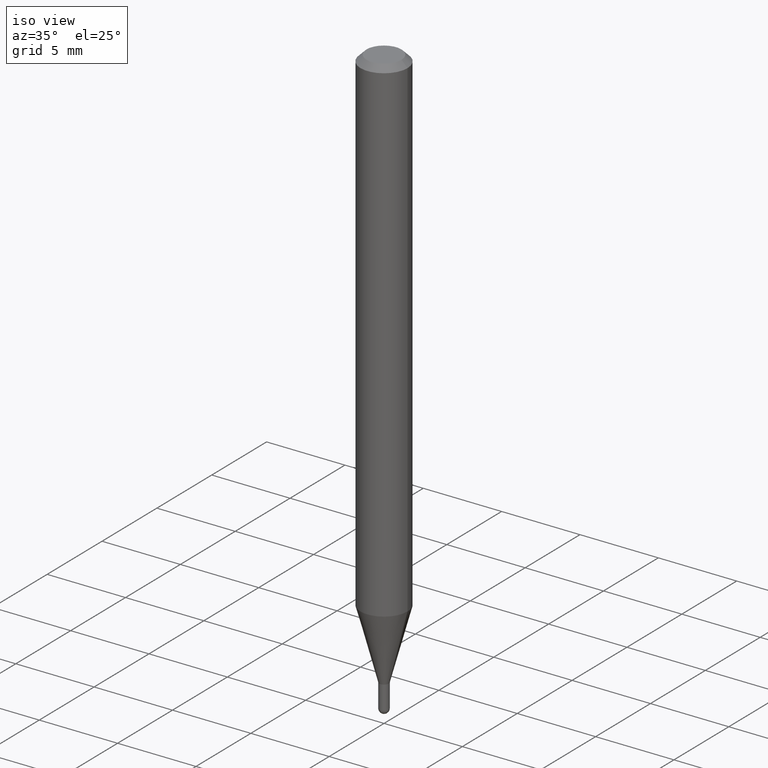
[diagram: clean part render]
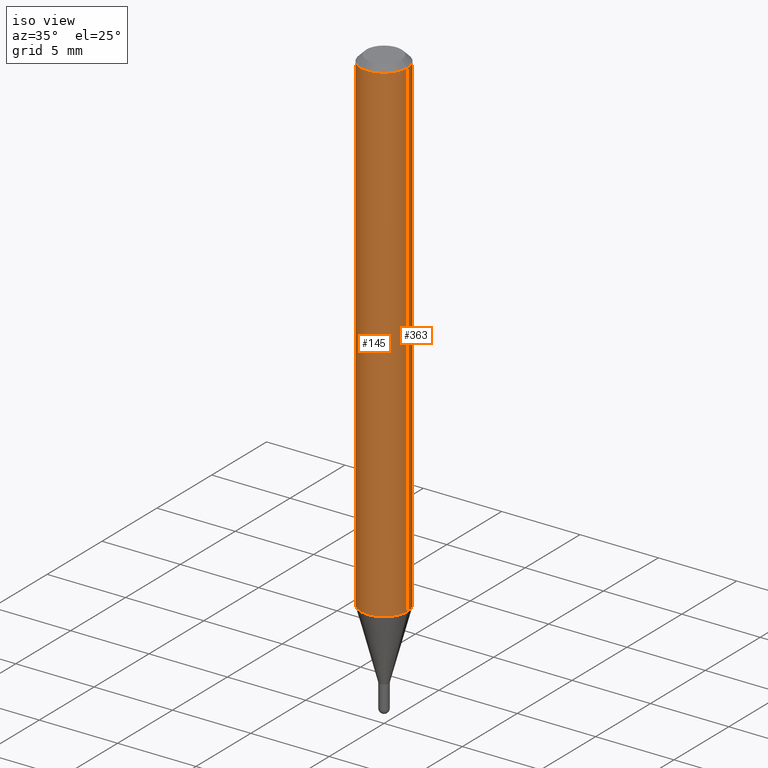
[diagram: same view with one multi-face feature highlighted, each face labeled with its STEP entity id]
A machine part, iso view. The highlighted faces form ONE feature: a constant-radius fillet chain: 2 tangent blend faces with common blend radius 1.4999 mm. The faces share edges in the B-rep.
Their STEP definitions:
[1] entity #363 (Cylinder):
#13 = FACE_OUTER_BOUND ( 'NONE', #310, .T. ) ;
#16 = CARTESIAN_POINT ( 'NONE',  ( 0.05904999999999999832, -4.123439461173740327E-16, 2.879382386107500220E-30 ) ) ;
#42 = DIRECTION ( 'NONE',  ( -2.445468806185136877E-29, 3.491481338843145188E-15, 1.000000000000000000 ) ) ;
#74 = ORIENTED_EDGE ( 'NONE', *, *, #270, .F. ) ;
#79 = EDGE_CURVE ( 'NONE', #194, #332, #371, .T. ) ;
#92 = DIRECTION ( 'NONE',  ( -2.445468806185136597E-29, 3.491481338843145583E-15, 1.000000000000000000 ) ) ;
#128 = CYLINDRICAL_SURFACE ( 'NONE', #247, 0.05904999999999999832 ) ;
#148 = VERTEX_POINT ( 'NONE', #381 ) ;
#151 = CARTESIAN_POINT ( 'NONE',  ( -0.05904999999999999832, 4.195754854663391478E-16, -2.904631170795521892E-30 ) ) ;
#159 = EDGE_CURVE ( 'NONE', #229, #148, #486, .T. ) ;
#163 = DIRECTION ( 'NONE',  ( -2.445468806185136877E-29, 3.491481338843145188E-15, 1.000000000000000000 ) ) ;
#177 = ORIENTED_EDGE ( 'NONE', *, *, #79, .F. ) ;
#194 = VERTEX_POINT ( 'NONE', #263 ) ;
#207 = EDGE_CURVE ( 'NONE', #148, #332, #395, .T. ) ;
#224 = DIRECTION ( 'NONE',  ( 1.000000000000000000, -6.982962677686266711E-15, 0.000000000000000000 ) ) ;
#229 = VERTEX_POINT ( 'NONE', #313 ) ;
#247 = AXIS2_PLACEMENT_3D ( 'NONE', #451, #334, #490 ) ;
#251 = CARTESIAN_POINT ( 'NONE',  ( -0.05904999999999999832, -1.786797363285168490E-15, -0.01500000000000008098 ) ) ;
#257 = VECTOR ( 'NONE', #163, 39.37007874015748143 ) ;
#263 = CARTESIAN_POINT ( 'NONE',  ( 0.05904999999999999832, -4.647161662000215063E-16, -0.01500000000000008098 ) ) ;
#270 = EDGE_CURVE ( 'NONE', #229, #194, #370, .T. ) ;
#296 = VECTOR ( 'NONE', #42, 39.37007874015748143 ) ;
#310 = EDGE_LOOP ( 'NONE', ( #483, #320, #177, #74 ) ) ;
#313 = CARTESIAN_POINT ( 'NONE',  ( 0.05904999999999999138, -4.772717423537742623E-15, -1.248860599342374922 ) ) ;
#320 = ORIENTED_EDGE ( 'NONE', *, *, #207, .T. ) ;
#332 = VERTEX_POINT ( 'NONE', #251 ) ;
#334 = DIRECTION ( 'NONE',  ( -2.445468806185136597E-29, 3.491481338843145583E-15, 1.000000000000000000 ) ) ;
#339 = CARTESIAN_POINT ( 'NONE',  ( 3.668203209277724356E-31, -5.237222008264746748E-17, -0.01500000000000008098 ) ) ;
#346 = CARTESIAN_POINT ( 'NONE',  ( 3.054049638965451471E-29, -4.360373477420368492E-15, -1.248860599342374922 ) ) ;
#351 = AXIS2_PLACEMENT_3D ( 'NONE', #339, #92, #224 ) ;
#363 = ADVANCED_FACE ( 'NONE', ( #13 ), #128, .T. ) ;
#370 = LINE ( 'NONE', #16, #257 ) ;
#371 = CIRCLE ( 'NONE', #351, 0.05904999999999999832 ) ;
#381 = CARTESIAN_POINT ( 'NONE',  ( -0.05904999999999999138, -3.940797991954028999E-15, -1.248860599342374922 ) ) ;
#395 = LINE ( 'NONE', #151, #296 ) ;
#451 = CARTESIAN_POINT ( 'NONE',  ( 0.000000000000000000, 0.000000000000000000, 0.000000000000000000 ) ) ;
#459 = DIRECTION ( 'NONE',  ( 1.000000000000000000, -6.982962677686265133E-15, 0.000000000000000000 ) ) ;
#463 = DIRECTION ( 'NONE',  ( -2.445468806185136597E-29, 3.491481338843145583E-15, 1.000000000000000000 ) ) ;
#483 = ORIENTED_EDGE ( 'NONE', *, *, #159, .T. ) ;
#486 = CIRCLE ( 'NONE', #506, 0.05904999999999999832 ) ;
#490 = DIRECTION ( 'NONE',  ( 1.000000000000000000, -6.982962677686266711E-15, 4.876176775795936353E-29 ) ) ;
#506 = AXIS2_PLACEMENT_3D ( 'NONE', #346, #463, #459 ) ;
[2] entity #145 (Cylinder):
#12 = ORIENTED_EDGE ( 'NONE', *, *, #357, .F. ) ;
#16 = CARTESIAN_POINT ( 'NONE',  ( 0.05904999999999999832, -4.123439461173740327E-16, 2.879382386107500220E-30 ) ) ;
#23 = CARTESIAN_POINT ( 'NONE',  ( 3.668203209277724356E-31, -5.237222008264746748E-17, -0.01500000000000008098 ) ) ;
#42 = DIRECTION ( 'NONE',  ( -2.445468806185136877E-29, 3.491481338843145188E-15, 1.000000000000000000 ) ) ;
#62 = CARTESIAN_POINT ( 'NONE',  ( 0.000000000000000000, 0.000000000000000000, 0.000000000000000000 ) ) ;
#68 = CARTESIAN_POINT ( 'NONE',  ( 3.054049638965451471E-29, -4.360373477420368492E-15, -1.248860599342374922 ) ) ;
#84 = EDGE_CURVE ( 'NONE', #148, #229, #450, .T. ) ;
#104 = FACE_OUTER_BOUND ( 'NONE', #158, .T. ) ;
#107 = DIRECTION ( 'NONE',  ( 1.000000000000000000, -6.982962677686266711E-15, 4.876176775795936353E-29 ) ) ;
#145 = ADVANCED_FACE ( 'NONE', ( #104 ), #396, .T. ) ;
#148 = VERTEX_POINT ( 'NONE', #381 ) ;
#151 = CARTESIAN_POINT ( 'NONE',  ( -0.05904999999999999832, 4.195754854663391478E-16, -2.904631170795521892E-30 ) ) ;
#158 = EDGE_LOOP ( 'NONE', ( #495, #492, #508, #12 ) ) ;
#163 = DIRECTION ( 'NONE',  ( -2.445468806185136877E-29, 3.491481338843145188E-15, 1.000000000000000000 ) ) ;
#181 = DIRECTION ( 'NONE',  ( -2.445468806185136597E-29, 3.491481338843145583E-15, 1.000000000000000000 ) ) ;
#188 = DIRECTION ( 'NONE',  ( 1.000000000000000000, -6.982962677686265133E-15, 0.000000000000000000 ) ) ;
#194 = VERTEX_POINT ( 'NONE', #263 ) ;
#202 = DIRECTION ( 'NONE',  ( 1.000000000000000000, -6.982962677686266711E-15, 0.000000000000000000 ) ) ;
#207 = EDGE_CURVE ( 'NONE', #148, #332, #395, .T. ) ;
#229 = VERTEX_POINT ( 'NONE', #313 ) ;
#251 = CARTESIAN_POINT ( 'NONE',  ( -0.05904999999999999832, -1.786797363285168490E-15, -0.01500000000000008098 ) ) ;
#255 = DIRECTION ( 'NONE',  ( -2.445468806185136597E-29, 3.491481338843145583E-15, 1.000000000000000000 ) ) ;
#257 = VECTOR ( 'NONE', #163, 39.37007874015748143 ) ;
#263 = CARTESIAN_POINT ( 'NONE',  ( 0.05904999999999999832, -4.647161662000215063E-16, -0.01500000000000008098 ) ) ;
#270 = EDGE_CURVE ( 'NONE', #229, #194, #370, .T. ) ;
#296 = VECTOR ( 'NONE', #42, 39.37007874015748143 ) ;
#313 = CARTESIAN_POINT ( 'NONE',  ( 0.05904999999999999138, -4.772717423537742623E-15, -1.248860599342374922 ) ) ;
#321 = AXIS2_PLACEMENT_3D ( 'NONE', #62, #425, #107 ) ;
#332 = VERTEX_POINT ( 'NONE', #251 ) ;
#357 = EDGE_CURVE ( 'NONE', #332, #194, #437, .T. ) ;
#370 = LINE ( 'NONE', #16, #257 ) ;
#381 = CARTESIAN_POINT ( 'NONE',  ( -0.05904999999999999138, -3.940797991954028999E-15, -1.248860599342374922 ) ) ;
#395 = LINE ( 'NONE', #151, #296 ) ;
#396 = CYLINDRICAL_SURFACE ( 'NONE', #321, 0.05904999999999999832 ) ;
#414 = AXIS2_PLACEMENT_3D ( 'NONE', #23, #255, #202 ) ;
#425 = DIRECTION ( 'NONE',  ( -2.445468806185136597E-29, 3.491481338843145583E-15, 1.000000000000000000 ) ) ;
#437 = CIRCLE ( 'NONE', #414, 0.05904999999999999832 ) ;
#450 = CIRCLE ( 'NONE', #478, 0.05904999999999999832 ) ;
#478 = AXIS2_PLACEMENT_3D ( 'NONE', #68, #181, #188 ) ;
#492 = ORIENTED_EDGE ( 'NONE', *, *, #84, .T. ) ;
#495 = ORIENTED_EDGE ( 'NONE', *, *, #207, .F. ) ;
#508 = ORIENTED_EDGE ( 'NONE', *, *, #270, .T. ) ;